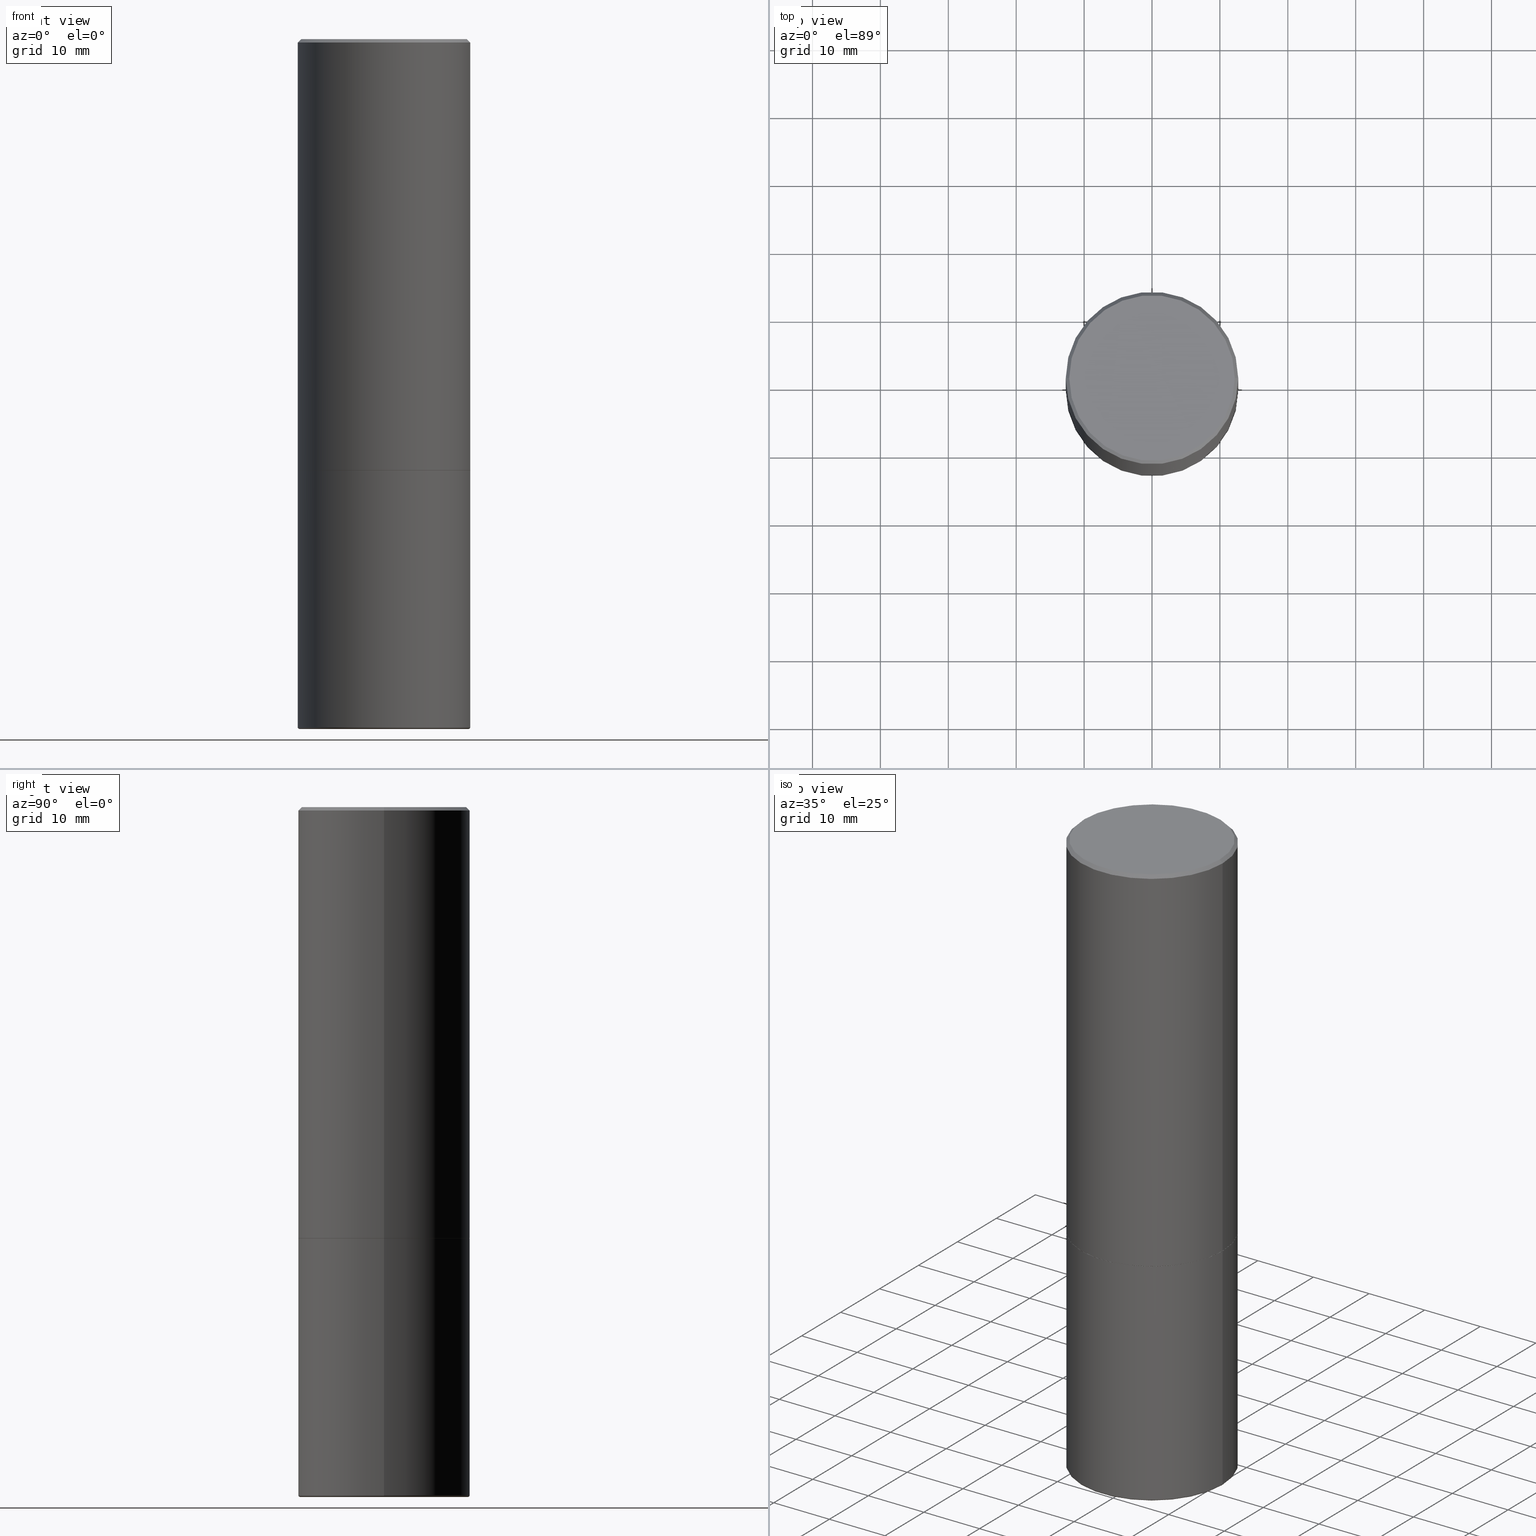
[diagram: canonical four-view strip — front | top / right | iso, engineering-drawing reading convention]
A machine part, canonical four-view strip (front | top / right | iso — engineering-drawing reading convention). The complete STEP part file that produces these views, byte-faithful:
ISO-10303-21;
HEADER;
FILE_DESCRIPTION (( 'STEP AP203' ),
    '1' );
FILE_NAME ('38878.STEP',
    '2024-03-03T19:00:48',
    ( '' ),
    ( '' ),
    'SwSTEP 2.0',
    'SolidWorks 2023',
    '' );
FILE_SCHEMA (( 'CONFIG_CONTROL_DESIGN' ));
ENDSEC;

DATA;
#1 = CIRCLE ( 'NONE', #6, 0.5000000000000002220 ) ;
#2 = PLANE ( 'NONE',  #403 ) ;
#3 = CARTESIAN_POINT ( 'NONE',  ( -0.5000000000000001110, 3.552713678800501718E-15, -2.459467545127453732E-29 ) ) ;
#4 = DIRECTION ( 'NONE',  ( -2.445468806185136597E-29, 3.491481338843145583E-15, 1.000000000000000000 ) ) ;
#5 = DIRECTION ( 'NONE',  ( 2.438088387897960049E-29, -3.491481338843145188E-15, -1.000000000000000000 ) ) ;
#6 = AXIS2_PLACEMENT_3D ( 'NONE', #133, #68, #276 ) ;
#7 = DIRECTION ( 'NONE',  ( 1.000000000000000000, -6.982962677686266711E-15, 4.876176775795935793E-29 ) ) ;
#8 = CARTESIAN_POINT ( 'NONE',  ( -0.5000000000000002220, -8.448070674724393209E-16, -2.499000000000000110 ) ) ;
#9 = EDGE_CURVE ( 'NONE', #217, #93, #27, .T. ) ;
#10 = VERTEX_POINT ( 'NONE', #296 ) ;
#11 = DIRECTION ( 'NONE',  ( 2.438088387897960049E-29, -3.491481338843145188E-15, -1.000000000000000000 ) ) ;
#12 = VERTEX_POINT ( 'NONE', #157 ) ;
#13 = DIRECTION ( 'NONE',  ( -6.982962677686266711E-15, -1.000000000000000000, 3.491481338843145583E-15 ) ) ;
#14 = EDGE_LOOP ( 'NONE', ( #251, #98, #172, #44 ) ) ;
#15 = UNCERTAINTY_MEASURE_WITH_UNIT (LENGTH_MEASURE( 1.000000000000000082E-05 ), #281, 'distance_accuracy_value', 'NONE');
#16 = EDGE_CURVE ( 'NONE', #49, #325, #56, .T. ) ;
#17 = CARTESIAN_POINT ( 'NONE',  ( 6.113672015462842613E-29, -8.728703347107864943E-15, -2.500000000000000000 ) ) ;
#18 = ORIENTED_EDGE ( 'NONE', *, *, #168, .T. ) ;
#19 = ORIENTED_EDGE ( 'NONE', *, *, #220, .T. ) ;
#20 = CIRCLE ( 'NONE', #200, 0.5000000000000000000 ) ;
#21 = COORDINATED_UNIVERSAL_TIME_OFFSET ( 5, 0, .BEHIND. ) ;
#22 = ORIENTED_EDGE ( 'NONE', *, *, #138, .T. ) ;
#23 = ADVANCED_FACE ( 'NONE', ( #130 ), #177, .T. ) ;
#24 = DATE_AND_TIME ( #97, #48 ) ;
#25 = DIRECTION ( 'NONE',  ( 1.000000000000000000, -6.982962677686269077E-15, 0.000000000000000000 ) ) ;
#26 = ORIENTED_EDGE ( 'NONE', *, *, #155, .F. ) ;
#27 = CIRCLE ( 'NONE', #411, 0.5000000000000000000 ) ;
#28 = AXIS2_PLACEMENT_3D ( 'NONE', #31, #4, #303 ) ;
#29 = DIRECTION ( 'NONE',  ( -2.445468806185136597E-29, 3.491481338843145583E-15, 1.000000000000000000 ) ) ;
#30 = CARTESIAN_POINT ( 'NONE',  ( 9.757420536678694842E-29, -1.393101054198414910E-14, -3.989999999999999769 ) ) ;
#31 = CARTESIAN_POINT ( 'NONE',  ( 9.757420536678694842E-29, -1.393101054198414910E-14, -3.989999999999999769 ) ) ;
#32 = AXIS2_PLACEMENT_3D ( 'NONE', #30, #95, #319 ) ;
#33 = DIRECTION ( 'NONE',  ( 1.000000000000000000, -6.982962677686266711E-15, 4.878011538933550964E-29 ) ) ;
#34 = EDGE_CURVE ( 'NONE', #93, #147, #292, .T. ) ;
#35 = CARTESIAN_POINT ( 'NONE',  ( 0.000000000000000000, 0.000000000000000000, 0.000000000000000000 ) ) ;
#36 = DIRECTION ( 'NONE',  ( 1.000000000000000000, -6.982962677686269866E-15, 0.000000000000000000 ) ) ;
#37 = FACE_OUTER_BOUND ( 'NONE', #229, .T. ) ;
#38 = AXIS2_PLACEMENT_3D ( 'NONE', #17, #85, #247 ) ;
#39 = EDGE_CURVE ( 'NONE', #246, #402, #274, .T. ) ;
#40 = FACE_OUTER_BOUND ( 'NONE', #255, .T. ) ;
#41 = ORIENTED_EDGE ( 'NONE', *, *, #379, .T. ) ;
#42 = ADVANCED_BREP_SHAPE_REPRESENTATION ( '38878', ( #242, #102, #262 ), #372 ) ;
#43 = DIRECTION ( 'NONE',  ( -2.445468806185136597E-29, 3.491481338843145583E-15, 1.000000000000000000 ) ) ;
#44 = ORIENTED_EDGE ( 'NONE', *, *, #332, .F. ) ;
#45 = LINE ( 'NONE', #340, #342 ) ;
#46 = ORIENTED_EDGE ( 'NONE', *, *, #134, .T. ) ;
#47 = CC_DESIGN_PERSON_AND_ORGANIZATION_ASSIGNMENT ( #293, #385, ( #305 ) ) ;
#48 = LOCAL_TIME ( 14, 0, 48.00000000000000000, #353 ) ;
#49 = VERTEX_POINT ( 'NONE', #356 ) ;
#50 = FACE_OUTER_BOUND ( 'NONE', #417, .T. ) ;
#51 = ORIENTED_EDGE ( 'NONE', *, *, #295, .F. ) ;
#52 = DATE_AND_TIME ( #57, #413 ) ;
#53 = CARTESIAN_POINT ( 'NONE',  ( 6.113672015462842613E-29, -8.728703347107864943E-15, -2.500000000000000000 ) ) ;
#54 = SECURITY_CLASSIFICATION_LEVEL ( 'unclassified' ) ;
#55 = ADVANCED_FACE ( 'NONE', ( #266 ), #334, .T. ) ;
#56 = LINE ( 'NONE', #189, #131 ) ;
#57 = CALENDAR_DATE ( 2024, 3, 3 ) ;
#58 = ORIENTED_EDGE ( 'NONE', *, *, #203, .T. ) ;
#59 = DESIGN_CONTEXT ( 'detailed design', #336, 'design' ) ;
#60 = SHAPE_DEFINITION_REPRESENTATION ( #162, #42 ) ;
#61 = DIRECTION ( 'NONE',  ( 1.000000000000000000, -6.982962677686266711E-15, 4.878011538933550964E-29 ) ) ;
#62 = EDGE_CURVE ( 'NONE', #93, #217, #116, .T. ) ;
#63 = CIRCLE ( 'NONE', #186, 0.4899999999999999911 ) ;
#64 = AXIS2_PLACEMENT_3D ( 'NONE', #343, #13, #398 ) ;
#65 = DIRECTION ( 'NONE',  ( -0.7071067811865447972, 2.468850131082228662E-15, -0.7071067811865501263 ) ) ;
#66 = PRODUCT_DEFINITION ( 'UNKNOWN', '', #305, #59 ) ;
#67 = DIRECTION ( 'NONE',  ( -1.000000000000000000, 6.982962677686265922E-15, -4.876176775795935793E-29 ) ) ;
#68 = DIRECTION ( 'NONE',  ( -2.445468806185136597E-29, 3.491481338843145583E-15, 1.000000000000000000 ) ) ;
#69 = DIRECTION ( 'NONE',  ( 1.000000000000000000, -6.982962677686265922E-15, 4.876176775795935793E-29 ) ) ;
#70 = CARTESIAN_POINT ( 'NONE',  ( -0.5000000000000001110, 3.421651712066270452E-15, -0.02000000000000010797 ) ) ;
#71 = AXIS2_PLACEMENT_3D ( 'NONE', #388, #163, #100 ) ;
#72 = AXIS2_PLACEMENT_3D ( 'NONE', #146, #11, #211 ) ;
#73 = EDGE_LOOP ( 'NONE', ( #386, #117 ) ) ;
#74 = CARTESIAN_POINT ( 'NONE',  ( 0.5000000000000001110, -3.491481338843134539E-15, 2.438088387897968457E-29 ) ) ;
#75 = ORIENTED_EDGE ( 'NONE', *, *, #345, .T. ) ;
#76 = CYLINDRICAL_SURFACE ( 'NONE', #244, 0.5000000000000001110 ) ;
#77 = ADVANCED_FACE ( 'NONE', ( #228 ), #161, .T. ) ;
#78 = EDGE_LOOP ( 'NONE', ( #119, #18, #148, #335 ) ) ;
#79 = PRODUCT_RELATED_PRODUCT_CATEGORY ( 'detail', '', ( #301 ) ) ;
#80 = CARTESIAN_POINT ( 'NONE',  ( -0.4799999999999999267, 3.386736898677839197E-15, 1.750090120940932860E-16 ) ) ;
#81 = AXIS2_PLACEMENT_3D ( 'NONE', #326, #416, #122 ) ;
#82 = EDGE_LOOP ( 'NONE', ( #51, #153, #175, #142 ) ) ;
#83 = CONICAL_SURFACE ( 'NONE', #381, 0.5000000000000001110, 0.7853981633974445042 ) ;
#84 = AXIS2_PLACEMENT_3D ( 'NONE', #103, #236, #36 ) ;
#85 = DIRECTION ( 'NONE',  ( -2.445468806185136597E-29, 3.491481338843145583E-15, 1.000000000000000000 ) ) ;
#86 = ORIENTED_EDGE ( 'NONE', *, *, #391, .T. ) ;
#87 = MECHANICAL_CONTEXT ( 'NONE', #232, 'mechanical' ) ;
#88 = CARTESIAN_POINT ( 'NONE',  ( -4.279790798774401163E-45, 6.110406998559833931E-31, 1.750090120941168532E-16 ) ) ;
#89 = PERSON_AND_ORGANIZATION ( #123, #311 ) ;
#90 = DIRECTION ( 'NONE',  ( -2.445468806185136597E-29, 3.491481338843145583E-15, 1.000000000000000000 ) ) ;
#91 = VECTOR ( 'NONE', #135, 39.37007874015748143 ) ;
#92 = APPROVAL_STATUS ( 'not_yet_approved' ) ;
#93 = VERTEX_POINT ( 'NONE', #346 ) ;
#94 = CALENDAR_DATE ( 2024, 3, 3 ) ;
#95 = DIRECTION ( 'NONE',  ( -2.445468806185136597E-29, 3.491481338843145583E-15, 1.000000000000000000 ) ) ;
#96 = EDGE_CURVE ( 'NONE', #341, #147, #20, .T. ) ;
#97 = CALENDAR_DATE ( 2024, 3, 3 ) ;
#98 = ORIENTED_EDGE ( 'NONE', *, *, #295, .T. ) ;
#99 = CONICAL_SURFACE ( 'NONE', #206, 0.5000000000000001110, 0.7853981633974445042 ) ;
#100 = DIRECTION ( 'NONE',  ( 1.000000000000000000, -6.982962677686265922E-15, 0.000000000000000000 ) ) ;
#101 = PLANE ( 'NONE',  #137 ) ;
#102 = MANIFOLD_SOLID_BREP ( 'Body-Move/Copy2[2]', #360 ) ;
#103 = CARTESIAN_POINT ( 'NONE',  ( 6.111226546656657010E-29, -8.725211865769021935E-15, -2.499000000000000110 ) ) ;
#104 = CIRCLE ( 'NONE', #213, 0.5000000000000000000 ) ;
#105 = DIRECTION ( 'NONE',  ( 1.000000000000000000, -6.982962677686266711E-15, 4.876176775795935793E-29 ) ) ;
#106 = DIRECTION ( 'NONE',  ( -2.445468806185136597E-29, 3.491481338843145583E-15, 1.000000000000000000 ) ) ;
#107 = DIRECTION ( 'NONE',  ( 7.105427357601001859E-15, 1.000000000000000000, -3.491481338843145583E-15 ) ) ;
#108 = DIRECTION ( 'NONE',  ( 2.445468806185136597E-29, -3.491481338843145583E-15, -1.000000000000000000 ) ) ;
#109 = VECTOR ( 'NONE', #65, 39.37007874015748854 ) ;
#110 = ORIENTED_EDGE ( 'NONE', *, *, #34, .F. ) ;
#111 = DIRECTION ( 'NONE',  ( 2.438088387897960049E-29, -3.491481338843145188E-15, -1.000000000000000000 ) ) ;
#112 = ORIENTED_EDGE ( 'NONE', *, *, #9, .F. ) ;
#113 = PLANE ( 'NONE',  #355 ) ;
#114 = ORIENTED_EDGE ( 'NONE', *, *, #220, .F. ) ;
#115 = FACE_OUTER_BOUND ( 'NONE', #14, .T. ) ;
#116 = CIRCLE ( 'NONE', #81, 0.5000000000000000000 ) ;
#117 = ORIENTED_EDGE ( 'NONE', *, *, #96, .T. ) ;
#118 = APPROVAL_STATUS ( 'not_yet_approved' ) ;
#119 = ORIENTED_EDGE ( 'NONE', *, *, #134, .F. ) ;
#120 = DATE_AND_TIME ( #94, #224 ) ;
#121 = CC_DESIGN_DATE_AND_TIME_ASSIGNMENT ( #120, #227, ( #132 ) ) ;
#122 = DIRECTION ( 'NONE',  ( 1.000000000000000000, -6.982962677686266711E-15, 0.000000000000000000 ) ) ;
#123 = PERSON ( 'UNSPECIFIED', 'UNSPECIFIED', 'UNSPECIFIED', ('UNSPECIFIED'), ('UNSPECIFIED'), ('UNSPECIFIED') ) ;
#124 = CARTESIAN_POINT ( 'NONE',  ( -0.4989999999999999991, -5.183095095664965021E-15, -2.500000000000000000 ) ) ;
#125 = APPROVAL_PERSON_ORGANIZATION ( #89, #283, #258 ) ;
#126 = CC_DESIGN_PERSON_AND_ORGANIZATION_ASSIGNMENT ( #406, #265, ( #305 ) ) ;
#127 = ORIENTED_EDGE ( 'NONE', *, *, #345, .F. ) ;
#128 = CALENDAR_DATE ( 2024, 3, 3 ) ;
#129 = ORIENTED_EDGE ( 'NONE', *, *, #39, .F. ) ;
#130 = FACE_OUTER_BOUND ( 'NONE', #78, .T. ) ;
#131 = VECTOR ( 'NONE', #154, 39.37007874015748143 ) ;
#132 = SECURITY_CLASSIFICATION ( '', '', #54 ) ;
#133 = CARTESIAN_POINT ( 'NONE',  ( 6.111226546656657010E-29, -8.725211865769021935E-15, -2.499000000000000110 ) ) ;
#134 = EDGE_CURVE ( 'NONE', #257, #318, #259, .T. ) ;
#135 = DIRECTION ( 'NONE',  ( -2.445468806185136877E-29, 3.491481338843145188E-15, 1.000000000000000000 ) ) ;
#136 = DIRECTION ( 'NONE',  ( -2.438088387897960049E-29, 3.491481338843145188E-15, 1.000000000000000000 ) ) ;
#137 = AXIS2_PLACEMENT_3D ( 'NONE', #234, #5, #67 ) ;
#138 = EDGE_CURVE ( 'NONE', #210, #10, #294, .T. ) ;
#139 = CARTESIAN_POINT ( 'NONE',  ( 4.890937612370299433E-31, -6.982962677686328587E-17, -0.02000000000000010797 ) ) ;
#140 = LENGTH_MEASURE_WITH_UNIT ( LENGTH_MEASURE( 0.02539999999999999897 ), #337 );
#141 = APPLICATION_PROTOCOL_DEFINITION ( 'international standard', 'config_control_design', 1994, #232 ) ;
#142 = ORIENTED_EDGE ( 'NONE', *, *, #138, .F. ) ;
#143 = EDGE_CURVE ( 'NONE', #147, #341, #104, .T. ) ;
#144 = VECTOR ( 'NONE', #369, 39.37007874015748143 ) ;
#145 = ORIENTED_EDGE ( 'NONE', *, *, #363, .T. ) ;
#146 = CARTESIAN_POINT ( 'NONE',  ( 3.351822085289407153E-15, 0.4799999999999999267, -1.588406536597651338E-15 ) ) ;
#147 = VERTEX_POINT ( 'NONE', #349 ) ;
#148 = ORIENTED_EDGE ( 'NONE', *, *, #16, .T. ) ;
#149 = CARTESIAN_POINT ( 'NONE',  ( 0.000000000000000000, 0.000000000000000000, 0.000000000000000000 ) ) ;
#150 = EDGE_CURVE ( 'NONE', #368, #12, #222, .T. ) ;
#151 = EDGE_LOOP ( 'NONE', ( #397, #75, #374, #110 ) ) ;
#152 = APPROVAL_STATUS ( 'not_yet_approved' ) ;
#153 = ORIENTED_EDGE ( 'NONE', *, *, #310, .T. ) ;
#154 = DIRECTION ( 'NONE',  ( 0.7071067811867165487, -2.468850131084027659E-15, 0.7071067811863784858 ) ) ;
#155 = EDGE_CURVE ( 'NONE', #402, #246, #387, .T. ) ;
#156 = PERSON_AND_ORGANIZATION ( #123, #311 ) ;
#157 = CARTESIAN_POINT ( 'NONE',  ( 0.4899999999999999911, -1.738757706743885081E-14, -4.000000000000000000 ) ) ;
#158 = APPROVAL_PERSON_ORGANIZATION ( #263, #271, #193 ) ;
#159 = PERSON_AND_ORGANIZATION ( #123, #311 ) ;
#160 = DIRECTION ( 'NONE',  ( 1.000000000000000000, -6.982962677686265922E-15, 0.000000000000000000 ) ) ;
#161 = CYLINDRICAL_SURFACE ( 'NONE', #371, 0.5000000000000001110 ) ;
#162 = PRODUCT_DEFINITION_SHAPE ( 'NONE', 'NONE',  #66 ) ;
#163 = DIRECTION ( 'NONE',  ( -2.445468806185136597E-29, 3.491481338843145583E-15, 1.000000000000000000 ) ) ;
#164 = ADVANCED_FACE ( 'NONE', ( #362 ), #2, .F. ) ;
#165 = CIRCLE ( 'NONE', #64, 0.01000000000000009909 ) ;
#166 = CYLINDRICAL_SURFACE ( 'NONE', #347, 0.5000000000000000000 ) ;
#167 = DIRECTION ( 'NONE',  ( -2.445468806185136597E-29, 3.491481338843145583E-15, 1.000000000000000000 ) ) ;
#168 = EDGE_CURVE ( 'NONE', #257, #49, #252, .T. ) ;
#169 = DIRECTION ( 'NONE',  ( 1.000000000000000000, -6.982962677686266711E-15, 0.000000000000000000 ) ) ;
#170 = AXIS2_PLACEMENT_3D ( 'NONE', #395, #268, #272 ) ;
#171 = CARTESIAN_POINT ( 'NONE',  ( 9.781875224740546387E-29, -1.396592535537258233E-14, -4.000000000000000000 ) ) ;
#172 = ORIENTED_EDGE ( 'NONE', *, *, #203, .F. ) ;
#173 = APPROVAL ( #118, 'UNSPECIFIED' ) ;
#174 = DIRECTION ( 'NONE',  ( -1.000000000000000000, 7.105427357601049190E-15, 0.000000000000000000 ) ) ;
#175 = ORIENTED_EDGE ( 'NONE', *, *, #332, .T. ) ;
#176 = FACE_OUTER_BOUND ( 'NONE', #288, .T. ) ;
#177 = CONICAL_SURFACE ( 'NONE', #328, 0.4989999999999999991, 0.7853981633976873100 ) ;
#178 = LOCAL_TIME ( 14, 0, 48.00000000000000000, #260 ) ;
#179 = ORIENTED_EDGE ( 'NONE', *, *, #231, .T. ) ;
#180 = DIRECTION ( 'NONE',  ( 0.7071067811865447972, -7.319954787623245001E-15, -0.7071067811865501263 ) ) ;
#181 = EDGE_LOOP ( 'NONE', ( #384, #339 ) ) ;
#182 = CC_DESIGN_PERSON_AND_ORGANIZATION_ASSIGNMENT ( #156, #289, ( #132 ) ) ;
#183 = LINE ( 'NONE', #74, #214 ) ;
#184 = EDGE_LOOP ( 'NONE', ( #344, #208, #86, #112 ) ) ;
#185 = PERSON_AND_ORGANIZATION ( #123, #311 ) ;
#186 = AXIS2_PLACEMENT_3D ( 'NONE', #171, #233, #392 ) ;
#187 = CARTESIAN_POINT ( 'NONE',  ( 6.113672015462842613E-29, -8.728703347107864943E-15, -2.500000000000000000 ) ) ;
#188 = CC_DESIGN_APPROVAL ( #173, ( #132 ) ) ;
#189 = CARTESIAN_POINT ( 'NONE',  ( 0.4989999999999999991, -1.221320172327331228E-14, -2.500000000000000000 ) ) ;
#190 = ADVANCED_FACE ( 'NONE', ( #202 ), #273, .T. ) ;
#191 = PERSON_AND_ORGANIZATION ( #123, #311 ) ;
#192 = CARTESIAN_POINT ( 'NONE',  ( 0.5000000000000000000, -3.491481338843133355E-15, 2.438088387897967896E-29 ) ) ;
#193 = APPROVAL_ROLE ( '' ) ;
#194 = DIRECTION ( 'NONE',  ( -2.445468806185136597E-29, 3.491481338843145583E-15, 1.000000000000000000 ) ) ;
#195 = AXIS2_PLACEMENT_3D ( 'NONE', #358, #106, #33 ) ;
#196 = CARTESIAN_POINT ( 'NONE',  ( 6.113672015462842613E-29, -8.728703347107864943E-15, -2.500000000000000000 ) ) ;
#197 = ADVANCED_FACE ( 'NONE', ( #302 ), #99, .T. ) ;
#198 = FACE_OUTER_BOUND ( 'NONE', #151, .T. ) ;
#199 = CARTESIAN_POINT ( 'NONE',  ( -0.5000000000000001110, 3.421651712066270452E-15, -0.02000000000000010797 ) ) ;
#200 = AXIS2_PLACEMENT_3D ( 'NONE', #53, #290, #25 ) ;
#201 = CIRCLE ( 'NONE', #237, 0.01000000000000009909 ) ;
#202 = FACE_OUTER_BOUND ( 'NONE', #282, .T. ) ;
#203 = EDGE_CURVE ( 'NONE', #10, #210, #269, .T. ) ;
#204 = DIRECTION ( 'NONE',  ( -2.445468806185136597E-29, 3.491481338843145583E-15, 1.000000000000000000 ) ) ;
#205 = DIRECTION ( 'NONE',  ( 2.445468806185136597E-29, -3.491481338843145583E-15, -1.000000000000000000 ) ) ;
#206 = AXIS2_PLACEMENT_3D ( 'NONE', #139, #205, #359 ) ;
#207 =( NAMED_UNIT ( * ) SI_UNIT ( $, .STERADIAN. ) SOLID_ANGLE_UNIT ( ) );
#208 = ORIENTED_EDGE ( 'NONE', *, *, #150, .T. ) ;
#209 = DIRECTION ( 'NONE',  ( -2.445468806185136877E-29, 3.491481338843145188E-15, 1.000000000000000000 ) ) ;
#210 = VERTEX_POINT ( 'NONE', #70 ) ;
#211 = DIRECTION ( 'NONE',  ( -1.000000000000000000, 6.982962677686265922E-15, -4.876176775795935793E-29 ) ) ;
#212 = ORIENTED_EDGE ( 'NONE', *, *, #278, .F. ) ;
#213 = AXIS2_PLACEMENT_3D ( 'NONE', #187, #90, #223 ) ;
#214 = VECTOR ( 'NONE', #209, 39.37007874015748143 ) ;
#215 = ORIENTED_EDGE ( 'NONE', *, *, #391, .F. ) ;
#216 = CARTESIAN_POINT ( 'NONE',  ( -0.4899999999999999911, -1.044935113675965826E-14, -3.989999999999999769 ) ) ;
#217 = VERTEX_POINT ( 'NONE', #330 ) ;
#218 = DATE_TIME_ROLE ( 'creation_date' ) ;
#219 = DIRECTION ( 'NONE',  ( 1.000000000000000000, -6.982962677686267499E-15, 4.876176775795935793E-29 ) ) ;
#220 = EDGE_CURVE ( 'NONE', #12, #368, #63, .T. ) ;
#221 = APPROVAL_ROLE ( '' ) ;
#222 = CIRCLE ( 'NONE', #170, 0.4899999999999999911 ) ;
#223 = DIRECTION ( 'NONE',  ( 1.000000000000000000, -6.982962677686269077E-15, 0.000000000000000000 ) ) ;
#224 = LOCAL_TIME ( 14, 0, 48.00000000000000000, #380 ) ;
#225 = APPROVAL_DATE_TIME ( #409, #271 ) ;
#226 = DIRECTION ( 'NONE',  ( -0.7071067811867165487, 7.493145998870964739E-15, 0.7071067811863784858 ) ) ;
#227 = DATE_TIME_ROLE ( 'classification_date' ) ;
#228 = FACE_OUTER_BOUND ( 'NONE', #82, .T. ) ;
#229 = EDGE_LOOP ( 'NONE', ( #19, #41, #400, #215 ) ) ;
#230 = AXIS2_PLACEMENT_3D ( 'NONE', #364, #306, #7 ) ;
#231 = EDGE_CURVE ( 'NONE', #402, #210, #357, .T. ) ;
#232 = APPLICATION_CONTEXT ( 'configuration controlled 3d designs of mechanical parts and assemblies' ) ;
#233 = DIRECTION ( 'NONE',  ( -2.445468806185136597E-29, 3.491481338843145583E-15, 1.000000000000000000 ) ) ;
#234 = CARTESIAN_POINT ( 'NONE',  ( 6.113672015462842613E-29, -8.728703347107864943E-15, -2.500000000000000000 ) ) ;
#235 = CC_DESIGN_PERSON_AND_ORGANIZATION_ASSIGNMENT ( #159, #415, ( #301 ) ) ;
#236 = DIRECTION ( 'NONE',  ( -2.445468806185136597E-29, 3.491481338843145583E-15, 1.000000000000000000 ) ) ;
#237 = AXIS2_PLACEMENT_3D ( 'NONE', #216, #107, #174 ) ;
#238 = CARTESIAN_POINT ( 'NONE',  ( -0.4989999999999999991, -5.177796641316741831E-15, -2.500000000000000000 ) ) ;
#239 = DIRECTION ( 'NONE',  ( -2.445468806185136597E-29, 3.491481338843145583E-15, 1.000000000000000000 ) ) ;
#240 = DIMENSIONAL_EXPONENTS ( 1.000000000000000000, 0.000000000000000000, 0.000000000000000000, 0.000000000000000000, 0.000000000000000000, 0.000000000000000000, 0.000000000000000000 ) ;
#241 = LINE ( 'NONE', #279, #144 ) ;
#242 = MANIFOLD_SOLID_BREP ( 'Body-Move/Copy2[1]', #365 ) ;
#243 = ADVANCED_FACE ( 'NONE', ( #198 ), #166, .T. ) ;
#244 = AXIS2_PLACEMENT_3D ( 'NONE', #312, #43, #285 ) ;
#245 = DIRECTION ( 'NONE',  ( -1.000000000000000000, 6.982962677686265922E-15, 0.000000000000000000 ) ) ;
#246 = VERTEX_POINT ( 'NONE', #333 ) ;
#247 = DIRECTION ( 'NONE',  ( 1.000000000000000000, -6.982962677686266711E-15, 0.000000000000000000 ) ) ;
#248 = ORIENTED_EDGE ( 'NONE', *, *, #231, .F. ) ;
#249 = CARTESIAN_POINT ( 'NONE',  ( 0.5000000000000002220, -1.221669320461215845E-14, -2.499000000000000110 ) ) ;
#250 = EDGE_CURVE ( 'NONE', #49, #257, #299, .T. ) ;
#251 = ORIENTED_EDGE ( 'NONE', *, *, #278, .T. ) ;
#252 = CIRCLE ( 'NONE', #323, 0.4989999999999999991 ) ;
#253 = CARTESIAN_POINT ( 'NONE',  ( -0.4899999999999999911, -1.043128140666586904E-14, -4.000000000000000000 ) ) ;
#254 = AXIS2_PLACEMENT_3D ( 'NONE', #331, #204, #270 ) ;
#255 = EDGE_LOOP ( 'NONE', ( #129, #145, #58, #248 ) ) ;
#256 = APPROVAL_DATE_TIME ( #24, #173 ) ;
#257 = VERTEX_POINT ( 'NONE', #238 ) ;
#258 = APPROVAL_ROLE ( '' ) ;
#259 = LINE ( 'NONE', #124, #316 ) ;
#260 = COORDINATED_UNIVERSAL_TIME_OFFSET ( 5, 0, .BEHIND. ) ;
#261 = CARTESIAN_POINT ( 'NONE',  ( 4.890937612370299433E-31, -6.982962677686328587E-17, -0.02000000000000010797 ) ) ;
#262 = AXIS2_PLACEMENT_3D ( 'NONE', #149, #412, #286 ) ;
#263 = PERSON_AND_ORGANIZATION ( #123, #311 ) ;
#264 = DIRECTION ( 'NONE',  ( -2.445468806185136597E-29, 3.491481338843145583E-15, 1.000000000000000000 ) ) ;
#265 = PERSON_AND_ORGANIZATION_ROLE ( 'creator' ) ;
#266 = FACE_OUTER_BOUND ( 'NONE', #184, .T. ) ;
#267 = ADVANCED_FACE ( 'NONE', ( #37 ), #280, .T. ) ;
#268 = DIRECTION ( 'NONE',  ( -2.445468806185136597E-29, 3.491481338843145583E-15, 1.000000000000000000 ) ) ;
#269 = CIRCLE ( 'NONE', #71, 0.5000000000000001110 ) ;
#270 = DIRECTION ( 'NONE',  ( 1.000000000000000000, -6.982962677686266711E-15, 0.000000000000000000 ) ) ;
#271 = APPROVAL ( #152, 'UNSPECIFIED' ) ;
#272 = DIRECTION ( 'NONE',  ( 1.000000000000000000, -6.982962677686265922E-15, 0.000000000000000000 ) ) ;
#273 = CYLINDRICAL_SURFACE ( 'NONE', #230, 0.5000000000000000000 ) ;
#274 = CIRCLE ( 'NONE', #378, 0.4799999999999999267 ) ;
#275 = APPROVAL_PERSON_ORGANIZATION ( #191, #173, #221 ) ;
#276 = DIRECTION ( 'NONE',  ( 1.000000000000000000, -6.982962677686269866E-15, 0.000000000000000000 ) ) ;
#277 =( NAMED_UNIT ( * ) PLANE_ANGLE_UNIT ( ) SI_UNIT ( $, .RADIAN. ) );
#278 = EDGE_CURVE ( 'NONE', #325, #318, #1, .T. ) ;
#279 = CARTESIAN_POINT ( 'NONE',  ( -0.5000000000000000000, 3.552713678800500929E-15, -2.459467545127452891E-29 ) ) ;
#280 = TOROIDAL_SURFACE ( 'NONE', #28, 0.4899999999999999911, 0.01000000000000009909 ) ;
#281 =( CONVERSION_BASED_UNIT ( 'INCH', #140 ) LENGTH_UNIT ( ) NAMED_UNIT ( #240 ) );
#282 = EDGE_LOOP ( 'NONE', ( #127, #370, #377, #399 ) ) ;
#283 = APPROVAL ( #92, 'UNSPECIFIED' ) ;
#284 = ORIENTED_EDGE ( 'NONE', *, *, #250, .T. ) ;
#285 = DIRECTION ( 'NONE',  ( 1.000000000000000000, -6.982962677686267499E-15, 4.876176775795935793E-29 ) ) ;
#286 = DIRECTION ( 'NONE',  ( 1.000000000000000000, 0.000000000000000000, 0.000000000000000000 ) ) ;
#287 = CONICAL_SURFACE ( 'NONE', #38, 0.4989999999999999991, 0.7853981633976873100 ) ;
#288 = EDGE_LOOP ( 'NONE', ( #284, #46, #212, #309 ) ) ;
#289 = PERSON_AND_ORGANIZATION_ROLE ( 'classification_officer' ) ;
#290 = DIRECTION ( 'NONE',  ( -2.445468806185136597E-29, 3.491481338843145583E-15, 1.000000000000000000 ) ) ;
#291 = ADVANCED_FACE ( 'NONE', ( #390 ), #101, .F. ) ;
#292 = LINE ( 'NONE', #192, #304 ) ;
#293 = PERSON_AND_ORGANIZATION ( #123, #311 ) ;
#294 = CIRCLE ( 'NONE', #393, 0.5000000000000001110 ) ;
#295 = EDGE_CURVE ( 'NONE', #318, #210, #327, .T. ) ;
#296 = CARTESIAN_POINT ( 'NONE',  ( 0.5000000000000001110, -3.500078625662629868E-15, -0.02000000000000010797 ) ) ;
#297 = DIRECTION ( 'NONE',  ( -2.445468806185136597E-29, 3.491481338843145583E-15, 1.000000000000000000 ) ) ;
#298 = CARTESIAN_POINT ( 'NONE',  ( 6.113672015462842613E-29, -8.728703347107864943E-15, -2.500000000000000000 ) ) ;
#299 = CIRCLE ( 'NONE', #254, 0.4989999999999999991 ) ;
#300 = CARTESIAN_POINT ( 'NONE',  ( 6.113672015462842613E-29, -8.728703347107864943E-15, -2.500000000000000000 ) ) ;
#301 = PRODUCT ( '38878', '38878', '', ( #87 ) ) ;
#302 = FACE_OUTER_BOUND ( 'NONE', #366, .T. ) ;
#303 = DIRECTION ( 'NONE',  ( 1.000000000000000000, -6.982962677686265922E-15, 4.883557194083112340E-29 ) ) ;
#304 = VECTOR ( 'NONE', #321, 39.37007874015748143 ) ;
#305 = PRODUCT_DEFINITION_FORMATION_WITH_SPECIFIED_SOURCE ( 'ANY', '', #301, .NOT_KNOWN. ) ;
#306 = DIRECTION ( 'NONE',  ( -2.445468806185136597E-29, 3.491481338843145583E-15, 1.000000000000000000 ) ) ;
#307 = DIRECTION ( 'NONE',  ( -1.000000000000000000, 6.982962677686265922E-15, -4.876176775795935793E-29 ) ) ;
#308 = PLANE ( 'NONE',  #72 ) ;
#309 = ORIENTED_EDGE ( 'NONE', *, *, #16, .F. ) ;
#310 = EDGE_CURVE ( 'NONE', #318, #325, #329, .T. ) ;
#311 = ORGANIZATION ( 'UNSPECIFIED', 'UNSPECIFIED', '' ) ;
#312 = CARTESIAN_POINT ( 'NONE',  ( 0.000000000000000000, 0.000000000000000000, 0.000000000000000000 ) ) ;
#313 = ORIENTED_EDGE ( 'NONE', *, *, #363, .F. ) ;
#314 = FACE_OUTER_BOUND ( 'NONE', #407, .T. ) ;
#315 = ORIENTED_EDGE ( 'NONE', *, *, #39, .T. ) ;
#316 = VECTOR ( 'NONE', #226, 39.37007874015748143 ) ;
#317 = LOCAL_TIME ( 14, 0, 48.00000000000000000, #21 ) ;
#318 = VERTEX_POINT ( 'NONE', #8 ) ;
#319 = DIRECTION ( 'NONE',  ( 1.000000000000000000, -6.982962677686265922E-15, 4.883557194083112340E-29 ) ) ;
#320 = DATE_AND_TIME ( #128, #317 ) ;
#321 = DIRECTION ( 'NONE',  ( -2.445468806185136877E-29, 3.491481338843145188E-15, 1.000000000000000000 ) ) ;
#322 = ADVANCED_FACE ( 'NONE', ( #176 ), #287, .T. ) ;
#323 = AXIS2_PLACEMENT_3D ( 'NONE', #298, #239, #169 ) ;
#324 = CC_DESIGN_APPROVAL ( #271, ( #305 ) ) ;
#325 = VERTEX_POINT ( 'NONE', #249 ) ;
#326 = CARTESIAN_POINT ( 'NONE',  ( 9.757420536678694842E-29, -1.393101054198414910E-14, -3.989999999999999769 ) ) ;
#327 = LINE ( 'NONE', #3, #91 ) ;
#328 = AXIS2_PLACEMENT_3D ( 'NONE', #196, #264, #375 ) ;
#329 = CIRCLE ( 'NONE', #84, 0.5000000000000002220 ) ;
#330 = CARTESIAN_POINT ( 'NONE',  ( -0.5000000000000000000, -1.037829686318364817E-14, -3.989999999999999769 ) ) ;
#331 = CARTESIAN_POINT ( 'NONE',  ( 6.113672015462842613E-29, -8.728703347107864943E-15, -2.500000000000000000 ) ) ;
#332 = EDGE_CURVE ( 'NONE', #325, #10, #183, .T. ) ;
#333 = CARTESIAN_POINT ( 'NONE',  ( 0.4799999999999999267, -3.396558832296482099E-15, 1.750090120941404697E-16 ) ) ;
#334 = TOROIDAL_SURFACE ( 'NONE', #32, 0.4899999999999999911, 0.01000000000000009909 ) ;
#335 = ORIENTED_EDGE ( 'NONE', *, *, #310, .F. ) ;
#336 = APPLICATION_CONTEXT ( 'configuration controlled 3d designs of mechanical parts and assemblies' ) ;
#337 =( LENGTH_UNIT ( ) NAMED_UNIT ( * ) SI_UNIT ( $, .METRE. ) );
#338 = CC_DESIGN_DATE_AND_TIME_ASSIGNMENT ( #320, #218, ( #66 ) ) ;
#339 = ORIENTED_EDGE ( 'NONE', *, *, #168, .F. ) ;
#340 = CARTESIAN_POINT ( 'NONE',  ( 0.5000000000000001110, -3.500078625662629868E-15, -0.02000000000000010797 ) ) ;
#341 = VERTEX_POINT ( 'NONE', #373 ) ;
#342 = VECTOR ( 'NONE', #180, 39.37007874015748854 ) ;
#343 = CARTESIAN_POINT ( 'NONE',  ( 0.4899999999999999911, -1.735266225405042074E-14, -3.989999999999999769 ) ) ;
#344 = ORIENTED_EDGE ( 'NONE', *, *, #379, .F. ) ;
#345 = EDGE_CURVE ( 'NONE', #217, #341, #241, .T. ) ;
#346 = CARTESIAN_POINT ( 'NONE',  ( 0.5000000000000000000, -1.742249188082728404E-14, -3.989999999999999769 ) ) ;
#347 = AXIS2_PLACEMENT_3D ( 'NONE', #35, #167, #105 ) ;
#348 = COORDINATED_UNIVERSAL_TIME_OFFSET ( 5, 0, .BEHIND. ) ;
#349 = CARTESIAN_POINT ( 'NONE',  ( 0.5000000000000000000, -1.222018468595099830E-14, -2.500000000000000000 ) ) ;
#350 = APPROVAL_DATE_TIME ( #52, #283 ) ;
#351 = DIRECTION ( 'NONE',  ( -2.445468806185136597E-29, 3.491481338843145583E-15, 1.000000000000000000 ) ) ;
#352 = ADVANCED_FACE ( 'NONE', ( #40 ), #83, .T. ) ;
#353 = COORDINATED_UNIVERSAL_TIME_OFFSET ( 5, 0, .BEHIND. ) ;
#354 = CARTESIAN_POINT ( 'NONE',  ( 0.000000000000000000, 0.000000000000000000, 0.000000000000000000 ) ) ;
#355 = AXIS2_PLACEMENT_3D ( 'NONE', #396, #111, #307 ) ;
#356 = CARTESIAN_POINT ( 'NONE',  ( 0.4989999999999999991, -1.221320172327331228E-14, -2.500000000000000000 ) ) ;
#357 = LINE ( 'NONE', #199, #109 ) ;
#358 = CARTESIAN_POINT ( 'NONE',  ( -4.279790798774401163E-45, 6.110406998559833931E-31, 1.750090120941168532E-16 ) ) ;
#359 = DIRECTION ( 'NONE',  ( -1.000000000000000000, 6.982962677686265922E-15, 0.000000000000000000 ) ) ;
#360 = CLOSED_SHELL ( 'NONE', ( #322, #389, #352, #197, #77, #23, #164, #418 ) ) ;
#361 = CC_DESIGN_APPROVAL ( #283, ( #66 ) ) ;
#362 = FACE_OUTER_BOUND ( 'NONE', #181, .T. ) ;
#363 = EDGE_CURVE ( 'NONE', #246, #10, #45, .T. ) ;
#364 = CARTESIAN_POINT ( 'NONE',  ( 0.000000000000000000, 0.000000000000000000, 0.000000000000000000 ) ) ;
#365 = CLOSED_SHELL ( 'NONE', ( #243, #267, #291, #190, #55, #401 ) ) ;
#366 = EDGE_LOOP ( 'NONE', ( #313, #26, #179, #22 ) ) ;
#367 = CARTESIAN_POINT ( 'NONE',  ( 4.890937612370299433E-31, -6.982962677686328587E-17, -0.02000000000000010797 ) ) ;
#368 = VERTEX_POINT ( 'NONE', #253 ) ;
#369 = DIRECTION ( 'NONE',  ( -2.445468806185136877E-29, 3.491481338843145188E-15, 1.000000000000000000 ) ) ;
#370 = ORIENTED_EDGE ( 'NONE', *, *, #9, .T. ) ;
#371 = AXIS2_PLACEMENT_3D ( 'NONE', #354, #297, #219 ) ;
#372 =( GEOMETRIC_REPRESENTATION_CONTEXT ( 3 ) GLOBAL_UNCERTAINTY_ASSIGNED_CONTEXT ( ( #15 ) ) GLOBAL_UNIT_ASSIGNED_CONTEXT ( ( #281, #277, #207 ) ) REPRESENTATION_CONTEXT ( 'NONE', 'WORKASPACE' ) );
#373 = CARTESIAN_POINT ( 'NONE',  ( -0.5000000000000000000, -7.777143265745505305E-15, -2.500000000000000000 ) ) ;
#374 = ORIENTED_EDGE ( 'NONE', *, *, #143, .F. ) ;
#375 = DIRECTION ( 'NONE',  ( 1.000000000000000000, -6.982962677686266711E-15, 0.000000000000000000 ) ) ;
#376 = APPLICATION_PROTOCOL_DEFINITION ( 'international standard', 'config_control_design', 1994, #336 ) ;
#377 = ORIENTED_EDGE ( 'NONE', *, *, #34, .T. ) ;
#378 = AXIS2_PLACEMENT_3D ( 'NONE', #88, #29, #61 ) ;
#379 = EDGE_CURVE ( 'NONE', #368, #217, #201, .T. ) ;
#380 = COORDINATED_UNIVERSAL_TIME_OFFSET ( 5, 0, .BEHIND. ) ;
#381 = AXIS2_PLACEMENT_3D ( 'NONE', #367, #108, #245 ) ;
#382 = CARTESIAN_POINT ( 'NONE',  ( 9.757420536678694842E-29, -1.393101054198414910E-14, -3.989999999999999769 ) ) ;
#383 = CALENDAR_DATE ( 2024, 3, 3 ) ;
#384 = ORIENTED_EDGE ( 'NONE', *, *, #250, .F. ) ;
#385 = PERSON_AND_ORGANIZATION_ROLE ( 'design_supplier' ) ;
#386 = ORIENTED_EDGE ( 'NONE', *, *, #143, .T. ) ;
#387 = CIRCLE ( 'NONE', #195, 0.4799999999999999267 ) ;
#388 = CARTESIAN_POINT ( 'NONE',  ( 4.890937612370299433E-31, -6.982962677686328587E-17, -0.02000000000000010797 ) ) ;
#389 = ADVANCED_FACE ( 'NONE', ( #115 ), #76, .T. ) ;
#390 = FACE_OUTER_BOUND ( 'NONE', #73, .T. ) ;
#391 = EDGE_CURVE ( 'NONE', #12, #93, #165, .T. ) ;
#392 = DIRECTION ( 'NONE',  ( 1.000000000000000000, -6.982962677686265922E-15, 0.000000000000000000 ) ) ;
#393 = AXIS2_PLACEMENT_3D ( 'NONE', #261, #194, #160 ) ;
#394 = CC_DESIGN_SECURITY_CLASSIFICATION ( #132, ( #305 ) ) ;
#395 = CARTESIAN_POINT ( 'NONE',  ( 9.781875224740546387E-29, -1.396592535537258233E-14, -4.000000000000000000 ) ) ;
#396 = CARTESIAN_POINT ( 'NONE',  ( 9.781875224740546387E-29, -1.396592535537258233E-14, -4.000000000000000000 ) ) ;
#397 = ORIENTED_EDGE ( 'NONE', *, *, #62, .T. ) ;
#398 = DIRECTION ( 'NONE',  ( 1.000000000000000000, -6.982962677686262766E-15, 0.000000000000000000 ) ) ;
#399 = ORIENTED_EDGE ( 'NONE', *, *, #96, .F. ) ;
#400 = ORIENTED_EDGE ( 'NONE', *, *, #62, .F. ) ;
#401 = ADVANCED_FACE ( 'NONE', ( #50 ), #113, .T. ) ;
#402 = VERTEX_POINT ( 'NONE', #80 ) ;
#403 = AXIS2_PLACEMENT_3D ( 'NONE', #300, #136, #69 ) ;
#404 = PERSON_AND_ORGANIZATION_ROLE ( 'creator' ) ;
#405 = ORIENTED_EDGE ( 'NONE', *, *, #150, .F. ) ;
#406 = PERSON_AND_ORGANIZATION ( #123, #311 ) ;
#407 = EDGE_LOOP ( 'NONE', ( #410, #315 ) ) ;
#408 = CC_DESIGN_PERSON_AND_ORGANIZATION_ASSIGNMENT ( #185, #404, ( #66 ) ) ;
#409 = DATE_AND_TIME ( #383, #178 ) ;
#410 = ORIENTED_EDGE ( 'NONE', *, *, #155, .T. ) ;
#411 = AXIS2_PLACEMENT_3D ( 'NONE', #382, #351, #414 ) ;
#412 = DIRECTION ( 'NONE',  ( 0.000000000000000000, 0.000000000000000000, 1.000000000000000000 ) ) ;
#413 = LOCAL_TIME ( 14, 0, 48.00000000000000000, #348 ) ;
#414 = DIRECTION ( 'NONE',  ( 1.000000000000000000, -6.982962677686266711E-15, 0.000000000000000000 ) ) ;
#415 = PERSON_AND_ORGANIZATION_ROLE ( 'design_owner' ) ;
#416 = DIRECTION ( 'NONE',  ( -2.445468806185136597E-29, 3.491481338843145583E-15, 1.000000000000000000 ) ) ;
#417 = EDGE_LOOP ( 'NONE', ( #114, #405 ) ) ;
#418 = ADVANCED_FACE ( 'NONE', ( #314 ), #308, .F. ) ;
ENDSEC;
END-ISO-10303-21;
